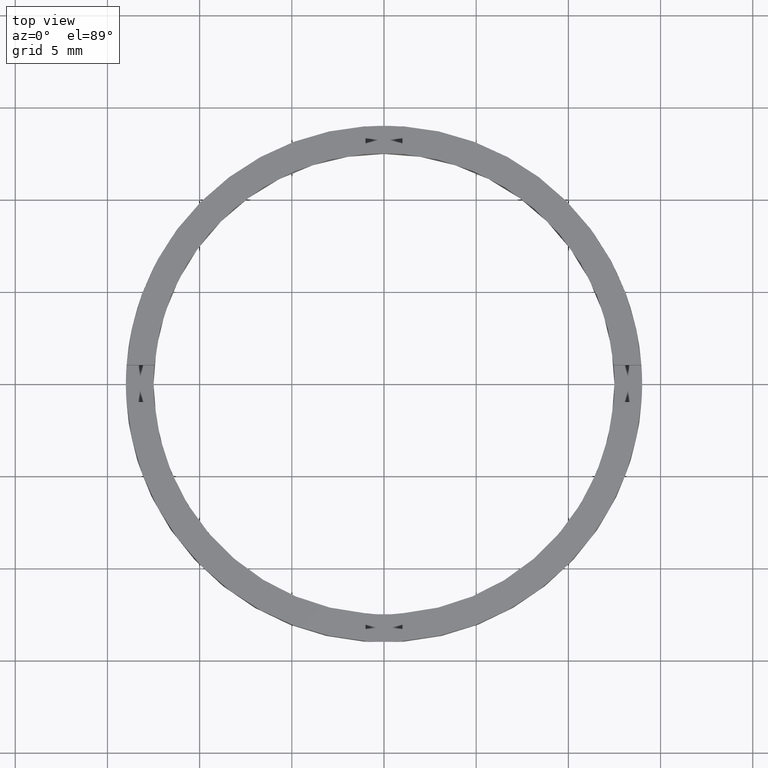
[diagram: clean part render]
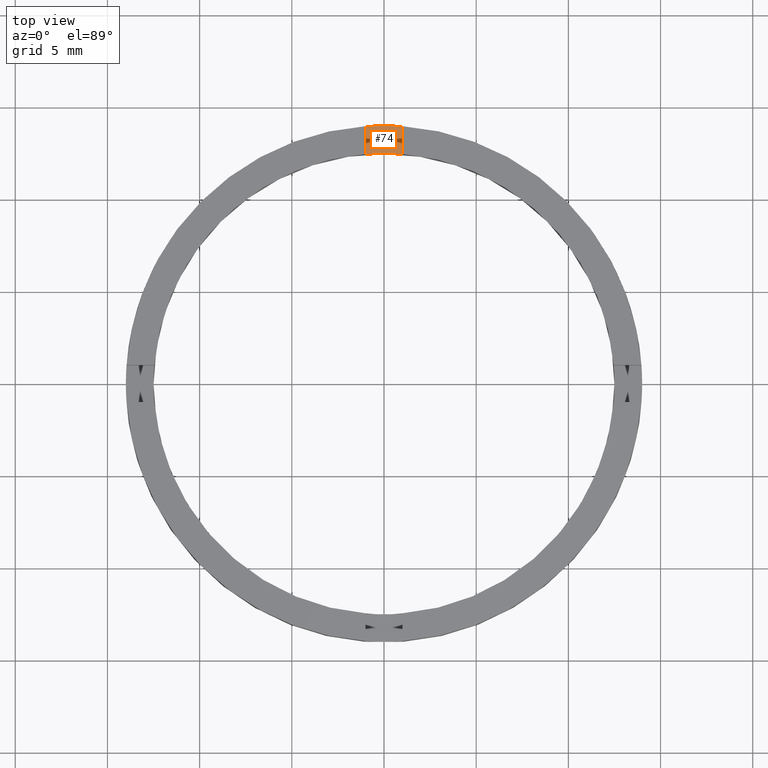
[diagram: same view with one face highlighted and labeled with its STEP entity id]
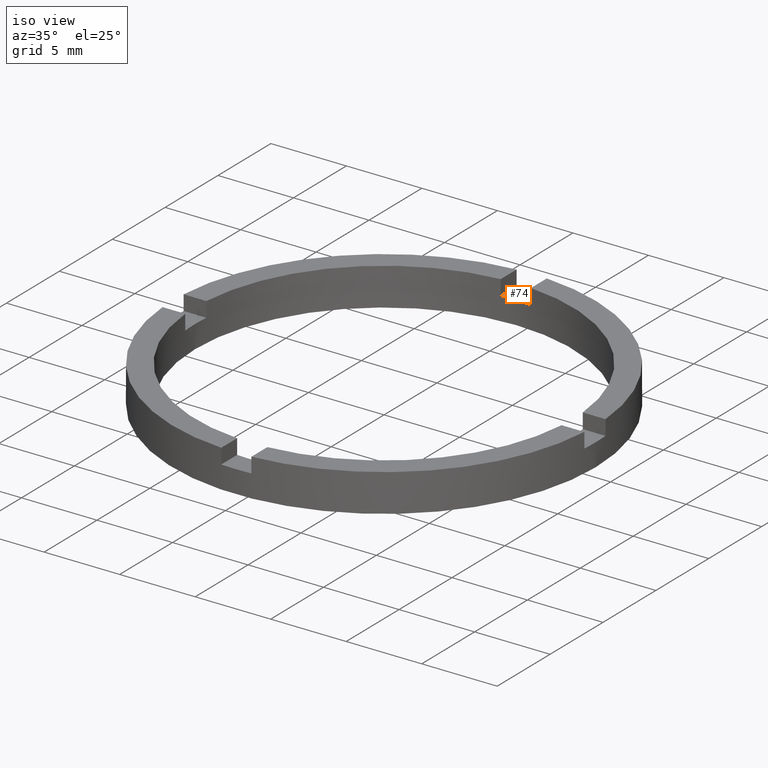
[diagram: same view with one face highlighted and labeled with its STEP entity id]
A machine part, top view. The second image highlights one B-rep face of the part: STEP entity #74.
A second angle (iso view) of the same face is appended — the face is thin or edge-on in the first view.
In plain terms, the highlighted planar face has unit normal (0, -0, 1).
Its self-contained STEP definition (entity closure, byte-faithful):
#5 = CARTESIAN_POINT ( 'NONE',  ( 0.000000000000000000, 0.000000000000000000, 1.500000000000000000 ) ) ;
#9 = CARTESIAN_POINT ( 'NONE',  ( 0.000000000000000000, 0.000000000000000000, 1.500000000000000000 ) ) ;
#36 = CARTESIAN_POINT ( 'NONE',  ( -1.000000000000024647, 12.45993579437711141, 1.500000000000000000 ) ) ;
#60 = PLANE ( 'NONE',  #106 ) ;
#68 = DIRECTION ( 'NONE',  ( 0.000000000000000000, -0.000000000000000000, 1.000000000000000000 ) ) ;
#74 = ADVANCED_FACE ( 'NONE', ( #266 ), #60, .T. ) ;
#106 = AXIS2_PLACEMENT_3D ( 'NONE', #5, #486, #475 ) ;
#120 = CARTESIAN_POINT ( 'NONE',  ( -1.000000000000024647, 13.96424004376894068, 1.500000000000000000 ) ) ;
#133 = DIRECTION ( 'NONE',  ( 1.000000000000000000, 0.000000000000000000, 0.000000000000000000 ) ) ;
#141 = ORIENTED_EDGE ( 'NONE', *, *, #710, .F. ) ;
#150 = EDGE_LOOP ( 'NONE', ( #460, #387, #141, #726 ) ) ;
#151 = EDGE_CURVE ( 'NONE', #364, #429, #477, .T. ) ;
#176 = DIRECTION ( 'NONE',  ( 0.000000000000000000, -0.000000000000000000, 1.000000000000000000 ) ) ;
#186 = DIRECTION ( 'NONE',  ( -0.000000000000000000, -1.000000000000000000, -0.000000000000000000 ) ) ;
#191 = DIRECTION ( 'NONE',  ( 0.000000000000000000, 1.000000000000000000, 0.000000000000000000 ) ) ;
#214 = VERTEX_POINT ( 'NONE', #36 ) ;
#222 = CARTESIAN_POINT ( 'NONE',  ( 0.9999999999999753530, 12.45993579437711674, 1.500000000000000000 ) ) ;
#229 = VERTEX_POINT ( 'NONE', #222 ) ;
#256 = EDGE_CURVE ( 'NONE', #229, #364, #780, .T. ) ;
#266 = FACE_OUTER_BOUND ( 'NONE', #150, .T. ) ;
#311 = CARTESIAN_POINT ( 'NONE',  ( -1.000000000000024647, 4.000000000000000000, 1.500000000000000000 ) ) ;
#364 = VERTEX_POINT ( 'NONE', #630 ) ;
#386 = DIRECTION ( 'NONE',  ( 1.000000000000000000, 0.000000000000000000, 0.000000000000000000 ) ) ;
#387 = ORIENTED_EDGE ( 'NONE', *, *, #513, .T. ) ;
#429 = VERTEX_POINT ( 'NONE', #120 ) ;
#446 = AXIS2_PLACEMENT_3D ( 'NONE', #600, #68, #386 ) ;
#460 = ORIENTED_EDGE ( 'NONE', *, *, #151, .T. ) ;
#463 = CARTESIAN_POINT ( 'NONE',  ( 0.9999999999999753530, 4.000000000000000000, 1.500000000000000000 ) ) ;
#475 = DIRECTION ( 'NONE',  ( 1.000000000000000000, 0.000000000000000000, -0.000000000000000000 ) ) ;
#477 = CIRCLE ( 'NONE', #732, 14.00000000000000000 ) ;
#486 = DIRECTION ( 'NONE',  ( 0.000000000000000000, -0.000000000000000000, 1.000000000000000000 ) ) ;
#513 = EDGE_CURVE ( 'NONE', #429, #214, #617, .T. ) ;
#516 = VECTOR ( 'NONE', #191, 1000.000000000000000 ) ;
#590 = CIRCLE ( 'NONE', #446, 12.50000000000000000 ) ;
#600 = CARTESIAN_POINT ( 'NONE',  ( 0.000000000000000000, 0.000000000000000000, 1.500000000000000000 ) ) ;
#617 = LINE ( 'NONE', #311, #622 ) ;
#622 = VECTOR ( 'NONE', #186, 1000.000000000000000 ) ;
#630 = CARTESIAN_POINT ( 'NONE',  ( 0.9999999999999753530, 13.96424004376894423, 1.500000000000000000 ) ) ;
#710 = EDGE_CURVE ( 'NONE', #229, #214, #590, .T. ) ;
#726 = ORIENTED_EDGE ( 'NONE', *, *, #256, .T. ) ;
#732 = AXIS2_PLACEMENT_3D ( 'NONE', #9, #176, #133 ) ;
#780 = LINE ( 'NONE', #463, #516 ) ;